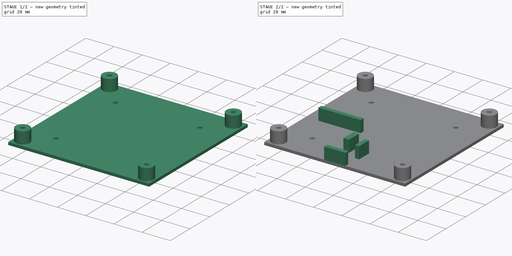
[diagram: build sequence overview — one tinted view per stage of 2, left to right]
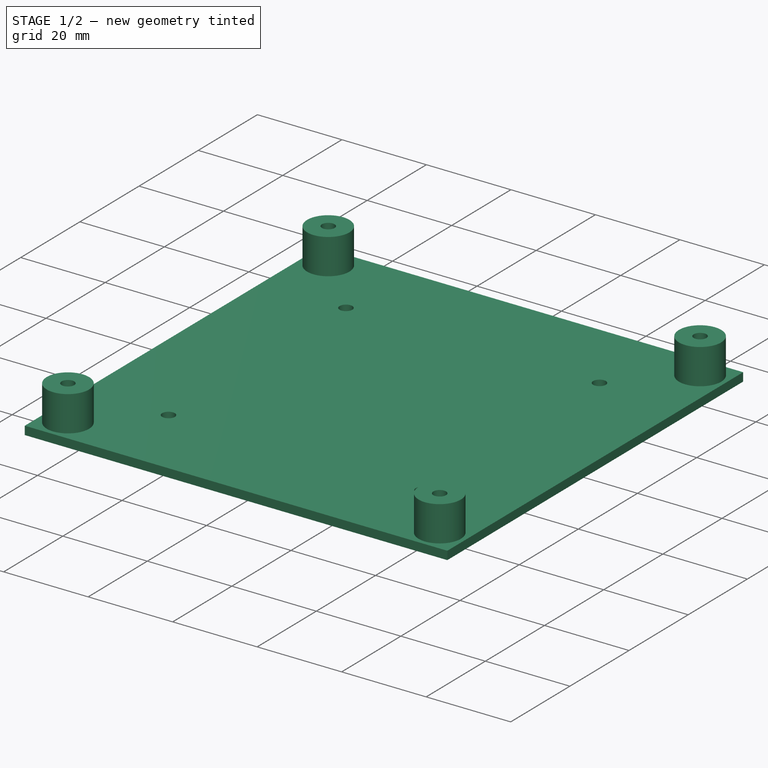
[diagram: stage 1 of 2 — iso view after this stage's code; geometry added in this stage tinted green]
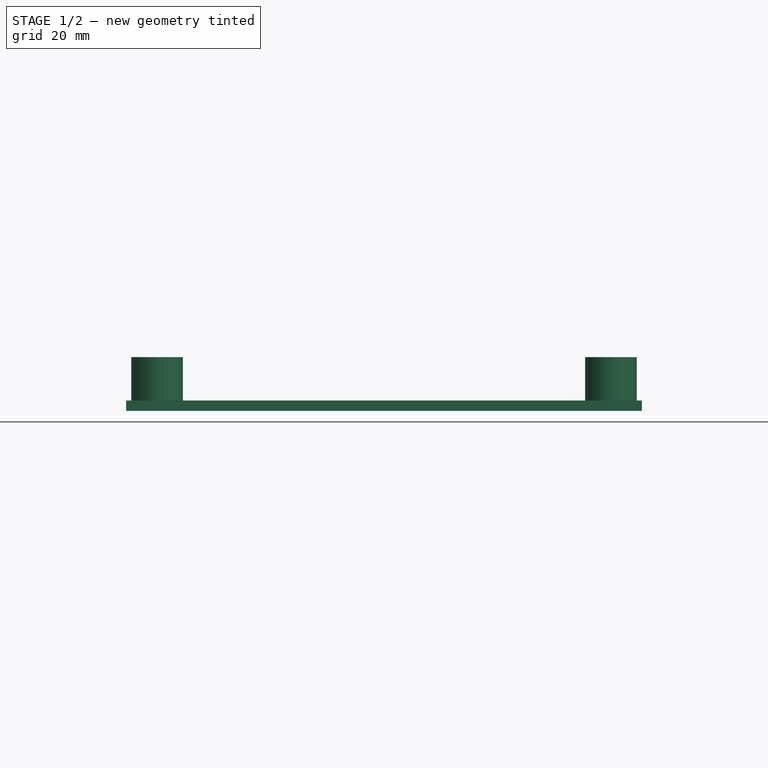
[diagram: stage 1 of 2 — front view after this stage's code; geometry added in this stage tinted green]
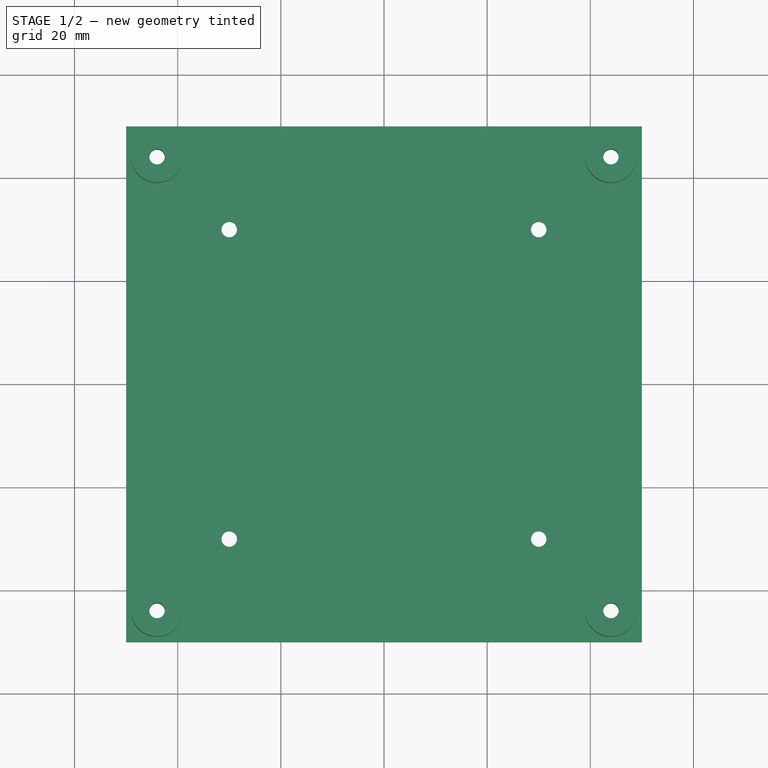
[diagram: stage 1 of 2 — top view after this stage's code; geometry added in this stage tinted green]
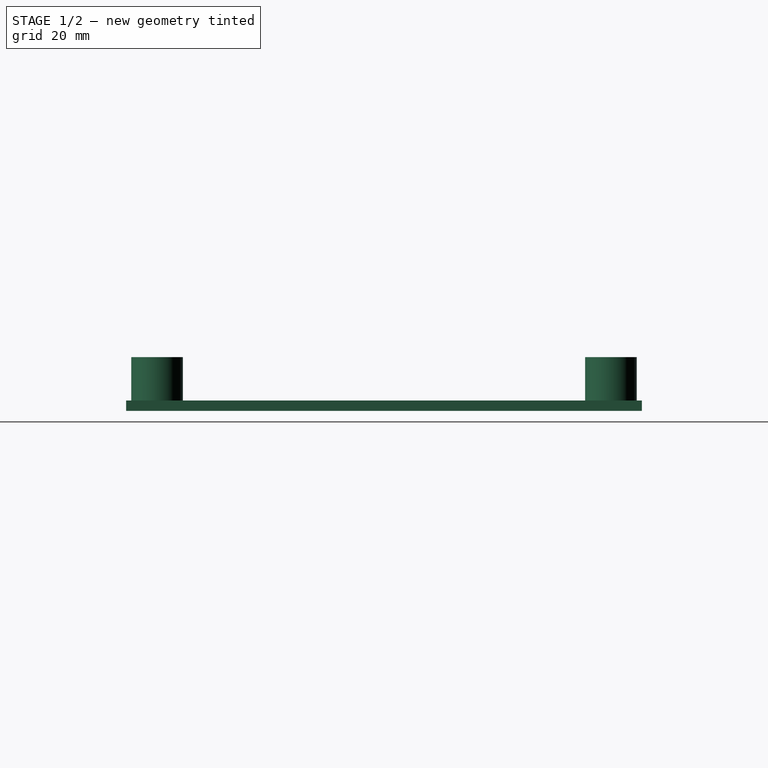
[diagram: stage 1 of 2 — right view after this stage's code; geometry added in this stage tinted green]
FCSTD DOCUMENT  (FreeCAD 0.21R33771 (Git))
Label: Holder 100mm
License: All rights reserved
LicenseURL: http://en.wikipedia.org/wiki/All_rights_reserved
objects: Sketcher::SketchObject×4, App::MeasureDistance×4, PartDesign::Pad×3, PartDesign::Pocket×1, PartDesign::Body×1
note: 13 computed .brp shape members not serialized (recipe doc carries the construction recipe); baked Part::Feature solids carry a one-line shape summary decoded from their .brp

FEATURE [Sketcher::SketchObject] Sketch
  FullyConstrained = true
  MapMode = 5
  Support = -> [XY_Plane001]
  sketch-geometry (14):
    g0: LineSegment StartX=50 StartY=-50 StartZ=0 EndX=50 EndY=50 EndZ=0
    g1: LineSegment StartX=50 StartY=50 StartZ=0 EndX=-50 EndY=50 EndZ=0
    g2: LineSegment StartX=-50 StartY=50 StartZ=0 EndX=-50 EndY=-50 EndZ=0
    g3: LineSegment StartX=-50 StartY=-50 StartZ=0 EndX=50 EndY=-50 EndZ=0
    g4: GeomPoint X=0 Y=0 Z=0
    g5: GeomPoint X=0 Y=0 Z=0
    g6: Circle CenterX=-30 CenterY=-30 CenterZ=0 NormalX=0 NormalY=0 NormalZ=1 AngleXU=0 Radius=1.5
    g7: Circle CenterX=30 CenterY=-30 CenterZ=0 NormalX=0 NormalY=0 NormalZ=1 AngleXU=0 Radius=1.5
    g8: Circle CenterX=30 CenterY=30 CenterZ=0 NormalX=0 NormalY=0 NormalZ=1 AngleXU=0 Radius=1.5
    g9: Circle CenterX=-30 CenterY=30 CenterZ=0 NormalX=0 NormalY=0 NormalZ=1 AngleXU=0 Radius=1.5
    g10: Circle CenterX=-44 CenterY=44 CenterZ=0 NormalX=0 NormalY=0 NormalZ=1 AngleXU=0 Radius=1.5
    g11: Circle CenterX=44 CenterY=44 CenterZ=0 NormalX=0 NormalY=0 NormalZ=1 AngleXU=0 Radius=1.5
    g12: Circle CenterX=44 CenterY=-44 CenterZ=0 NormalX=0 NormalY=0 NormalZ=1 AngleXU=0 Radius=1.5
    g13: Circle CenterX=-44 CenterY=-44 CenterZ=0 NormalX=0 NormalY=0 NormalZ=1 AngleXU=0 Radius=1.5
  constraints (37):
    c: Coincident(g0,g1)
    c: Coincident(g1,g2)
    c: Coincident(g2,g3)
    c: Coincident(g3,g0)
    c: Horizontal(g1)
    c: Horizontal(g3)
    c: Vertical(g0)
    c: Vertical(g2)
    c: Symmetric(g1,g0,g4)
    c: Coincident(g4,g-1)
    c: DistanceY(g2,g2) = 100
    c: DistanceX(g1,g1) = 100
    c: Coincident(g5,g4)
    c: Diameter(g9) = 3
    c: Diameter(g8) = 3
    c: Diameter(g7) = 3
    c: Diameter(g6) = 3
    c: Distance(g6,g2) = 20
    c: Distance(g6,g3) = 20
    c: Distance(g7,g3) = 20
    c: Distance(g7,g0) = 20
    c: Distance(g8,g0) = 20
    c: Distance(g8,g1) = 20
    c: Distance(g9,g1) = 20
    c: Distance(g9,g2) = 20
    c: Diameter(g13) = 3
    c: Diameter(g12) = 3
    c: Diameter(g11) = 3
    c: Diameter(g10) = 3
    c: Distance(g10,g-2) = 44
    c: Distance(g10,g-1) = 44
    c: Distance(g11,g-1) = 44
    c: Distance(g12,g-1) = 44
    c: Distance(g13,g-1) = 44
    c: Distance(g11,g-2) = 44
    c: Distance(g12,g-2) = 44
    c: Distance(g13,g-2) = 44
FEATURE [PartDesign::Pad] Pad
  Direction = (0,0,1)
  Length = 2
  Length2 = 10
  Profile = -> Sketch
  ReferenceAxis = -> Sketch [N_Axis]
  Refine = true
  Type = 0
FEATURE [Sketcher::SketchObject] Sketch005
  FullyConstrained = true
  MapMode = 5
  Placement = pos=(0,0,2) rot=(0,0,1;0rad)
  sketch-geometry (8):
    g0: Circle CenterX=-44 CenterY=44 CenterZ=0 NormalX=0 NormalY=0 NormalZ=1 AngleXU=0 Radius=1.5
    g1: Circle CenterX=44 CenterY=44 CenterZ=0 NormalX=0 NormalY=0 NormalZ=1 AngleXU=0 Radius=1.5
    g2: Circle CenterX=44 CenterY=-44 CenterZ=0 NormalX=0 NormalY=0 NormalZ=1 AngleXU=0 Radius=1.5
    g3: Circle CenterX=-44 CenterY=-44 CenterZ=0 NormalX=0 NormalY=0 NormalZ=1 AngleXU=0 Radius=5
    g4: Circle CenterX=-44 CenterY=-44 CenterZ=0 NormalX=0 NormalY=0 NormalZ=1 AngleXU=0 Radius=1.5
    g5: Circle CenterX=-44 CenterY=44 CenterZ=0 NormalX=0 NormalY=0 NormalZ=1 AngleXU=0 Radius=5
    g6: Circle CenterX=44 CenterY=44 CenterZ=0 NormalX=0 NormalY=0 NormalZ=1 AngleXU=0 Radius=5
    g7: Circle CenterX=44 CenterY=-44 CenterZ=0 NormalX=0 NormalY=0 NormalZ=1 AngleXU=0 Radius=5
  constraints (20):
    c: Diameter(g2) = 3
    c: Diameter(g1) = 3
    c: Diameter(g0) = 3
    c: Distance(g0,g-2) = 44
    c: Distance(g0,g-1) = 44
    c: Distance(g1,g-2) = 44
    c: Distance(g1,g-1) = 44
    c: Distance(g2,g-2) = 44
    c: Distance(g2,g-1) = 44
    c: Diameter(g3) = 10
    c: Distance(g3,g-1) = 44
    c: Distance(g3,g-2) = 44
    c: Coincident(g4,g3)
    c: Diameter(g4) = 3
    c: Coincident(g5,g0)
    c: Coincident(g6,g1)
    c: Coincident(g7,g2)
    c: Diameter(g6) = 10
    c: Diameter(g7) = 10
    c: Diameter(g5) = 10
FEATURE [Sketcher::SketchObject] Sketch006
  FullyConstrained = true
  MapMode = 5
  Placement = pos=(0,0,0) rot=(1,0,0;3.14159rad)
  sketch-geometry (28):
    g0: LineSegment StartX=-40.75 StartY=44 StartZ=0 EndX=-42.375 EndY=46.8146 EndZ=0
    g1: LineSegment StartX=-42.375 StartY=46.8146 StartZ=0 EndX=-45.625 EndY=46.8146 EndZ=0
    g2: LineSegment StartX=-45.625 StartY=46.8146 StartZ=0 EndX=-47.25 EndY=44 EndZ=0
    g3: LineSegment StartX=-47.25 StartY=44 StartZ=0 EndX=-45.625 EndY=41.1854 EndZ=0
    g4: LineSegment StartX=-45.625 StartY=41.1854 StartZ=0 EndX=-42.375 EndY=41.1854 EndZ=0
    g5: LineSegment StartX=-42.375 StartY=41.1854 StartZ=0 EndX=-40.75 EndY=44 EndZ=0
    g6: Circle CenterX=-44 CenterY=44 CenterZ=0 NormalX=0 NormalY=0 NormalZ=1 AngleXU=0 Radius=3.25
    g7: LineSegment StartX=45.625 StartY=46.8146 StartZ=0 EndX=42.375 EndY=46.8146 EndZ=0
    g8: LineSegment StartX=42.375 StartY=46.8146 StartZ=0 EndX=40.75 EndY=44 EndZ=0
    g9: LineSegment StartX=40.75 StartY=44 StartZ=0 EndX=42.375 EndY=41.1854 EndZ=0
    g10: LineSegment StartX=42.375 StartY=41.1854 StartZ=0 EndX=45.625 EndY=41.1854 EndZ=0
    g11: LineSegment StartX=45.625 StartY=41.1854 StartZ=0 EndX=47.25 EndY=44 EndZ=0
    g12: LineSegment StartX=47.25 StartY=44 StartZ=0 EndX=45.625 EndY=46.8146 EndZ=0
    g13: Circle CenterX=44 CenterY=44 CenterZ=0 NormalX=0 NormalY=0 NormalZ=1 AngleXU=0 Radius=3.25
    g14: LineSegment StartX=45.625 StartY=-41.1854 StartZ=0 EndX=42.375 EndY=-41.1854 EndZ=0
    g15: LineSegment StartX=42.375 StartY=-41.1854 StartZ=0 EndX=40.75 EndY=-44 EndZ=0
    g16: LineSegment StartX=40.75 StartY=-44 StartZ=0 EndX=42.375 EndY=-46.8146 EndZ=0
    g17: LineSegment StartX=42.375 StartY=-46.8146 StartZ=0 EndX=45.625 EndY=-46.8146 EndZ=0
    g18: LineSegment StartX=45.625 StartY=-46.8146 StartZ=0 EndX=47.25 EndY=-44 EndZ=0
    g19: LineSegment StartX=47.25 StartY=-44 StartZ=0 EndX=45.625 EndY=-41.1854 EndZ=0
    g20: Circle CenterX=44 CenterY=-44 CenterZ=0 NormalX=0 NormalY=0 NormalZ=1 AngleXU=0 Radius=3.25
    g21: LineSegment StartX=-40.75 StartY=-44 StartZ=0 EndX=-42.375 EndY=-41.1854 EndZ=0
    g22: LineSegment StartX=-42.375 StartY=-41.1854 StartZ=0 EndX=-45.625 EndY=-41.1854 EndZ=0
    g23: LineSegment StartX=-45.625 StartY=-41.1854 StartZ=0 EndX=-47.25 EndY=-44 EndZ=0
    g24: LineSegment StartX=-47.25 StartY=-44 StartZ=0 EndX=-45.625 EndY=-46.8146 EndZ=0
    g25: LineSegment StartX=-45.625 StartY=-46.8146 StartZ=0 EndX=-42.375 EndY=-46.8146 EndZ=0
    g26: LineSegment StartX=-42.375 StartY=-46.8146 StartZ=0 EndX=-40.75 EndY=-44 EndZ=0
    g27: Circle CenterX=-44 CenterY=-44 CenterZ=0 NormalX=0 NormalY=0 NormalZ=1 AngleXU=0 Radius=3.25
  constraints (68):
    c: Coincident(g0,g1)
    c: Coincident(g1,g2)
    c: Coincident(g2,g3)
    c: Coincident(g3,g4)
    c: Coincident(g4,g5)
    c: Coincident(g5,g0)
    c: Equal(g0, g1-g5) x5
    c: PointOnObject(g0,g6)
    c: PointOnObject(g1,g6)
    c: PointOnObject(g2,g6)
    c: PointOnObject(g3,g6)
    c: PointOnObject(g4,g6)
    c: PointOnObject(g5,g6)
    c: Diameter(g6) = 6.5
    c: Distance(g6,g-2) = 44
    c: Distance(g6,g-1) = 44
    c: Horizontal(g4)
    c: Coincident(g7,g8)
    c: Coincident(g8,g9)
    c: Coincident(g9,g10)
    c: Coincident(g10,g11)
    c: Coincident(g11,g12)
    c: Coincident(g12,g7)
    c: Equal(g7, g8-g12) x5
    c: PointOnObject(g7,g13)
    c: PointOnObject(g8,g13)
    c: PointOnObject(g9,g13)
    c: PointOnObject(g10,g13)
    c: PointOnObject(g11,g13)
    c: PointOnObject(g12,g13)
    c: Coincident(g14,g15)
    c: Coincident(g15,g16)
    c: Coincident(g16,g17)
    c: Coincident(g17,g18)
    c: Coincident(g18,g19)
    c: Coincident(g19,g14)
    c: Equal(g14, g15-g19) x5
    c: PointOnObject(g14,g20)
    c: PointOnObject(g15,g20)
    c: PointOnObject(g16,g20)
    c: PointOnObject(g17,g20)
    c: PointOnObject(g18,g20)
    c: PointOnObject(g19,g20)
    c: Coincident(g21,g22)
    c: Coincident(g22,g23)
    c: Coincident(g23,g24)
    c: Coincident(g24,g25)
    c: Coincident(g25,g26)
    c: Coincident(g26,g21)
    c: Equal(g21, g22-g26) x5
    c: PointOnObject(g21,g27)
    c: PointOnObject(g22,g27)
    c: PointOnObject(g23,g27)
    c: PointOnObject(g24,g27)
    c: PointOnObject(g25,g27)
    c: PointOnObject(g26,g27)
    c: Diameter(g20) = 6.5
    c: Diameter(g27) = 6.5
    c: Diameter(g13) = 6.5
    c: Distance(g13,g-2) = 44
    c: Distance(g13,g-1) = 44
    c: Distance(g20,g-2) = 44
    c: Distance(g27,g-2) = 44
    c: Distance(g27,g-1) = 44
    c: Distance(g20,g-1) = 44
    c: Horizontal(g7)
    c: Horizontal(g14)
    c: Horizontal(g22)
FEATURE [Sketcher::SketchObject] Sketch007
  FullyConstrained = true
  MapMode = 5
  Placement = pos=(0,0,2) rot=(0,0,1;0rad)
  sketch-geometry (17):
    g0: LineSegment StartX=-5 StartY=-24 StartZ=0 EndX=-1 EndY=-24 EndZ=0
    g1: LineSegment StartX=-1 StartY=-24 StartZ=0 EndX=-1 EndY=-34 EndZ=0
    g2: LineSegment StartX=-1 StartY=-34 StartZ=0 EndX=-5 EndY=-34 EndZ=0
    g3: LineSegment StartX=-5 StartY=-34 StartZ=0 EndX=-5 EndY=-24 EndZ=0
    g4: LineSegment StartX=6 StartY=-38 StartZ=0 EndX=9 EndY=-38 EndZ=0
    g5: LineSegment StartX=9 StartY=-38 StartZ=0 EndX=9 EndY=-28 EndZ=0
    g6: LineSegment StartX=9 StartY=-28 StartZ=0 EndX=6 EndY=-28 EndZ=0
    g7: LineSegment StartX=6 StartY=-28 StartZ=0 EndX=6 EndY=-38 EndZ=0
    g8: LineSegment StartX=-7.5 StartY=-47 StartZ=0 EndX=-7.5 EndY=-50 EndZ=0
    g9: LineSegment StartX=-7.5 StartY=-50 StartZ=0 EndX=7.5 EndY=-50 EndZ=0
    g10: LineSegment StartX=7.5 StartY=-50 StartZ=0 EndX=7.5 EndY=-47 EndZ=0
    g11: LineSegment StartX=7.5 StartY=-47 StartZ=0 EndX=-7.5 EndY=-47 EndZ=0
    g12: GeomPoint X=0 Y=-48.5 Z=0
    g13: LineSegment StartX=-41 StartY=-5 StartZ=0 EndX=-11 EndY=-5 EndZ=0
    g14: LineSegment StartX=-11 StartY=-5 StartZ=0 EndX=-11 EndY=-8 EndZ=0
    g15: LineSegment StartX=-11 StartY=-8 StartZ=0 EndX=-41 EndY=-8 EndZ=0
    g16: LineSegment StartX=-41 StartY=-8 StartZ=0 EndX=-41 EndY=-5 EndZ=0
  constraints (49):
    c: Coincident(g0,g1)
    c: Coincident(g1,g2)
    c: Coincident(g2,g3)
    c: Coincident(g3,g0)
    c: Horizontal(g0)
    c: Horizontal(g2)
    c: Vertical(g1)
    c: Vertical(g3)
    c: DistanceY(g3,g3) = 10
    c: DistanceX(g0,g0) = 4
    c: Distance(g1,g-1) = 34
    c: Distance(g1,g-2) = 1
    c: Coincident(g4,g5)
    c: Coincident(g5,g6)
    c: Coincident(g6,g7)
    c: Coincident(g7,g4)
    c: Horizontal(g4)
    c: Horizontal(g6)
    c: Vertical(g5)
    c: Vertical(g7)
    c: DistanceY(g5,g5) = 10
    c: DistanceX(g6,g6) = 3
    c: Distance(g4,g-1) = 38
    c: Distance(g4,g-2) = 9
    c: Coincident(g8,g9)
    c: Coincident(g9,g10)
    c: Coincident(g10,g11)
    c: Coincident(g11,g8)
    c: Horizontal(g9)
    c: Horizontal(g11)
    c: Vertical(g8)
    c: Vertical(g10)
    c: Symmetric(g9,g8,g12)
    c: PointOnObject(g12,g-2)
    c: DistanceY(g10,g10) = 3
    c: DistanceX(g11,g11) = 15
    c: Distance(g9,g-1) = 50
    c: Coincident(g13,g14)
    c: Coincident(g14,g15)
    c: Coincident(g15,g16)
    c: Coincident(g16,g13)
    c: Horizontal(g13)
    c: Horizontal(g15)
    c: Vertical(g14)
    c: Vertical(g16)
    c: DistanceY(g14,g14) = 3
    c: DistanceX(g13,g13) = 30
    c: Distance(g13,g-2) = 41
    c: Distance(g15,g-1) = 8
FEATURE [PartDesign::Pad] Pad001
  BaseFeature = -> Pad
  Direction = (0,0,1)
  Length = 8.4
  Length2 = 10
  Profile = -> Sketch005
  ReferenceAxis = -> Sketch005 [N_Axis]
  Refine = true
  Type = 0
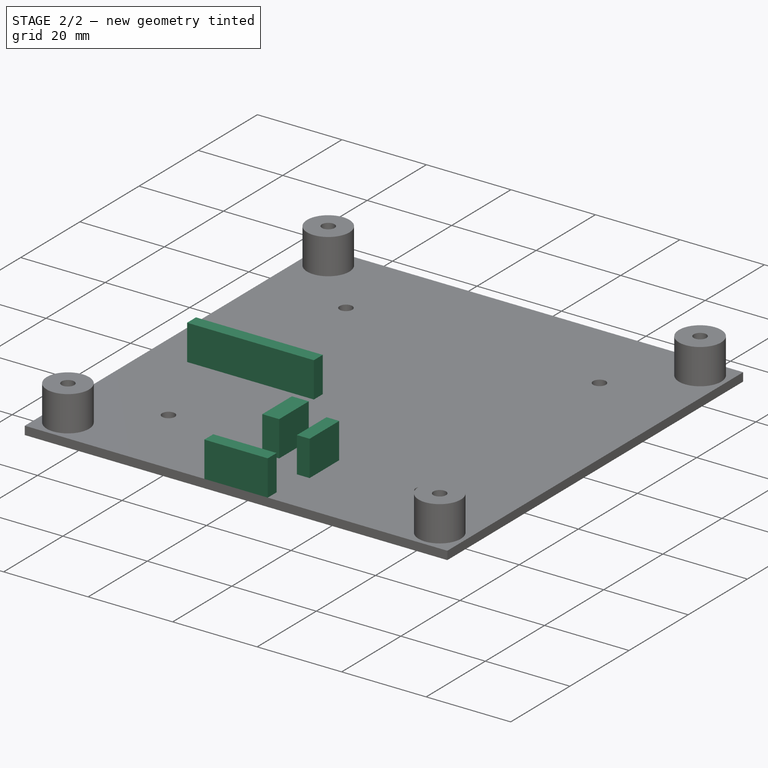
[diagram: stage 2 of 2 — iso view after this stage's code; geometry added in this stage tinted green]
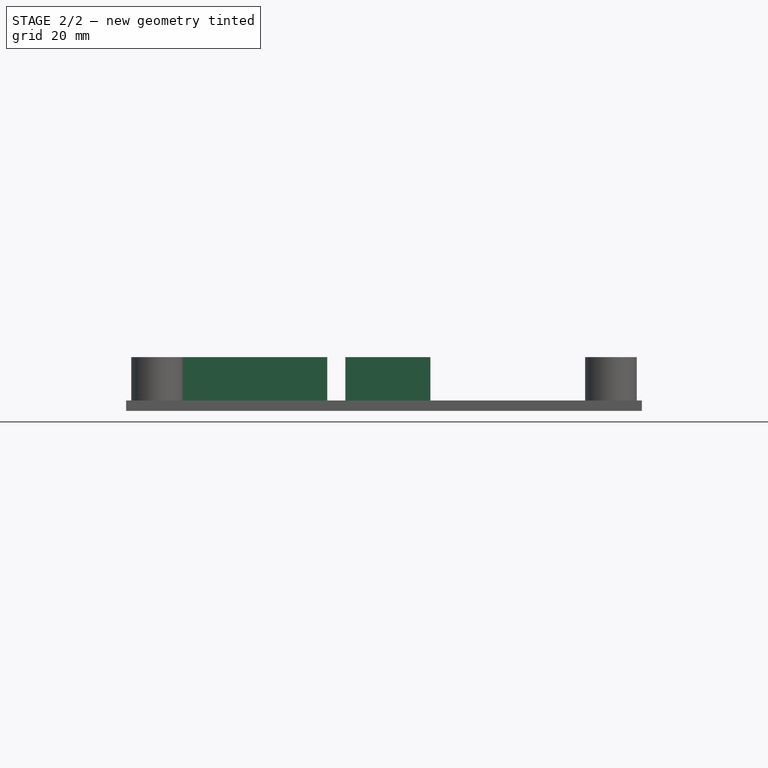
[diagram: stage 2 of 2 — front view after this stage's code; geometry added in this stage tinted green]
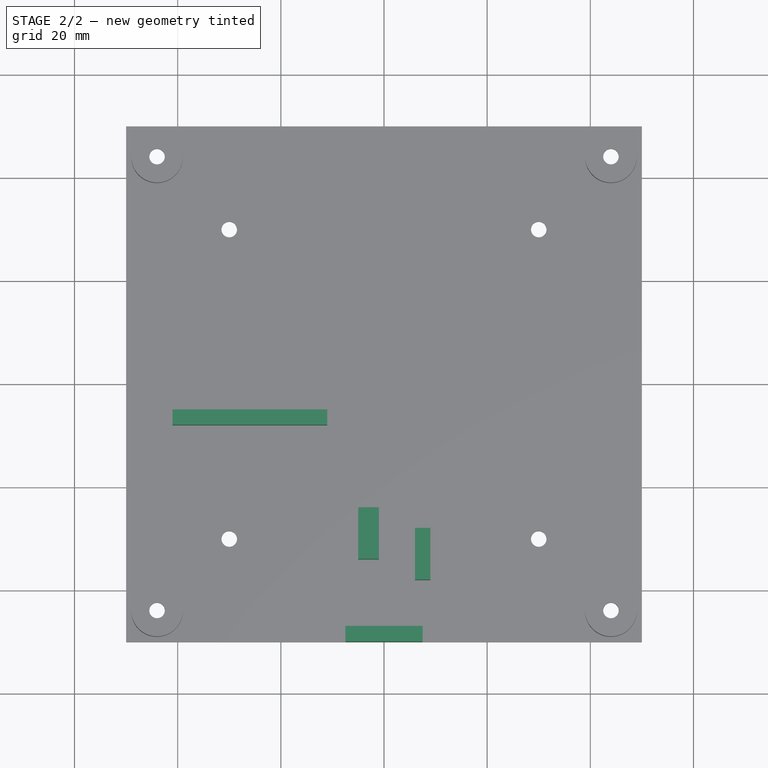
[diagram: stage 2 of 2 — top view after this stage's code; geometry added in this stage tinted green]
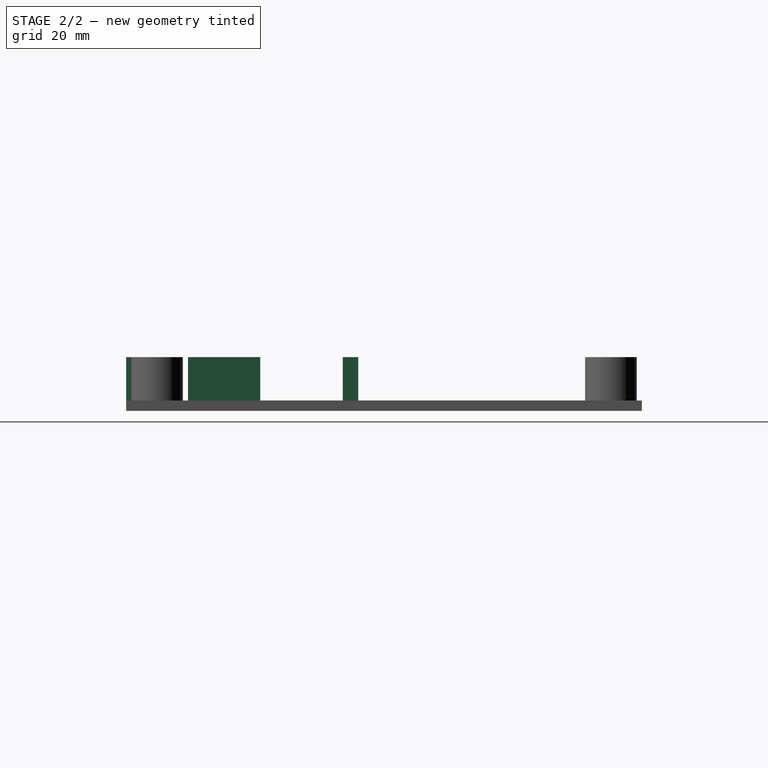
[diagram: stage 2 of 2 — right view after this stage's code; geometry added in this stage tinted green]
FEATURE [PartDesign::Pad] Pad002
  BaseFeature = -> Pad001
  Direction = (0,0,1)
  Length = 8.4
  Length2 = 10
  Profile = -> Sketch007
  ReferenceAxis = -> Sketch007 [N_Axis]
  Refine = true
  Type = 0
FEATURE [PartDesign::Pocket] Pocket
  BaseFeature = -> Pad002
  Direction = (0,0,1)
  Length = 7.4
  Length2 = 5
  Profile = -> Sketch006
  ReferenceAxis = -> Sketch006 [N_Axis]
  Refine = true
  Type = 0
FEATURE [PartDesign::Body] Body001
  Group = -> [Sketch,Pad,Sketch005,Sketch006,Sketch007,Pad001,Pad002,Pocket]
  Origin = -> Origin001
  Tip = -> Pocket
FEATURE [App::MeasureDistance] Distance  label="Distance: 3,02 mm"
  Distance = 3.01909
  P1 = (-44.7012,-42.6863,10.4)
  P2 = (-44.9801,-42.879,7.4)
FEATURE [App::MeasureDistance] Distance001  label="Distance: 1,73 mm"
  Distance = 1.73256
  P1 = (45.7048,-46.7808,10.4)
  P2 = (46.2468,-48.4264,10.4)
FEATURE [App::MeasureDistance] Distance002  label="Distance: 3,01 mm"
  Distance = 3.01203
  P1 = (-28.0749,-5,10.4)
  P2 = (-28.3438,-8,10.4)
FEATURE [App::MeasureDistance] Distance003  label="Distance: 10,42 mm"
  Distance = 10.4162
  P1 = (-7.5,-50,10.4)
  P2 = (-6.91969,-50,0)
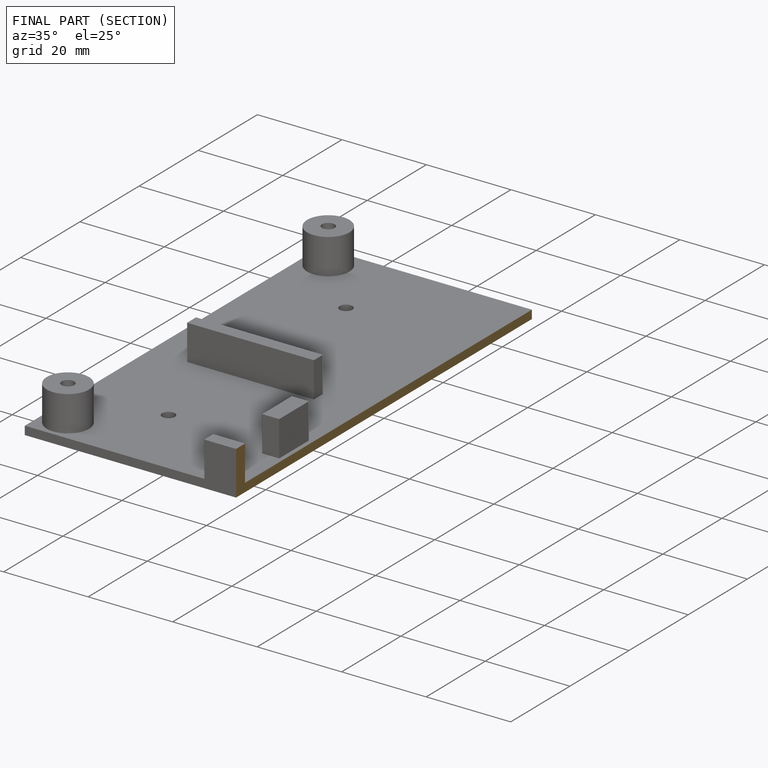
[diagram: finished part — half-section view (interior)]
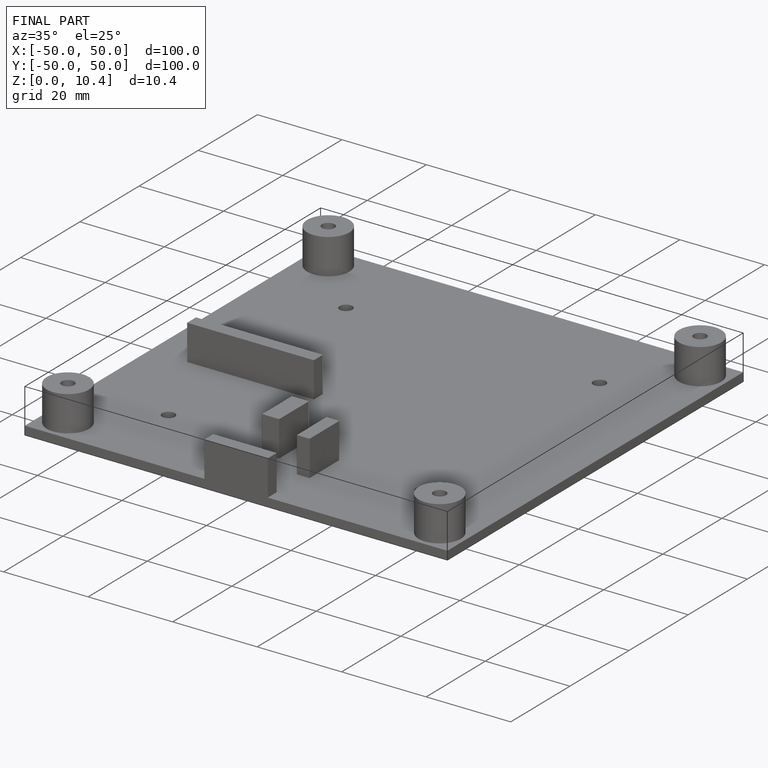
[diagram: finished part — iso view with bounding-box wireframe]
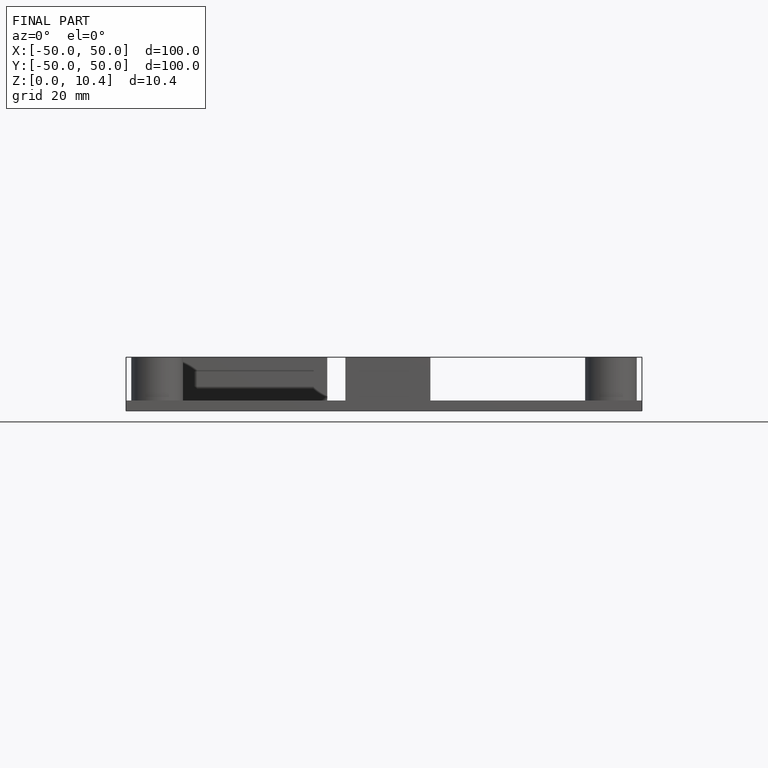
[diagram: finished part — front view with bounding-box wireframe]
